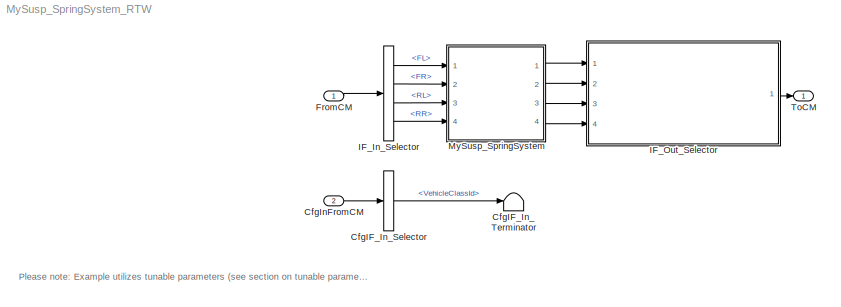
MODEL MySusp_SpringSystem_RTW
KIND model
CONFIG InitFcn = vehicle = 'Car'; if ~length(which('cmself')), cmenv; end\nMySusp_SpringSystem_RTW_bus
CONFIG PreLoadFcn = vehicle = 'Car'; if ~length(which('cmself')), cmenv; end\nMySusp_SpringSystem_RTW_bus\nMySusp_SpringSystem_RTW_params
BLOCK [BusSelector] CfgIF_In_Selector
  OutputSignals = VehicleClassId
  Ports = [1, 1]
  SID = 9
BLOCK [Terminator] CfgIF_In_Terminator
  SID = 10
BLOCK [Inport] CfgInFromCM
  OutDataTypeStr = Bus: cmSusp_SpringSystemCfgIn
  Port = 2
  SID = 8
BLOCK [Inport] FromCM
  OutDataTypeStr = Bus: cmSusp_SpringSystemIn
  SID = 1
BLOCK [BusSelector] IF_In_Selector
  OutputSignals = length.FL,length.FR,length.RL,length.RR
  Ports = [1, 4]
  SID = 2
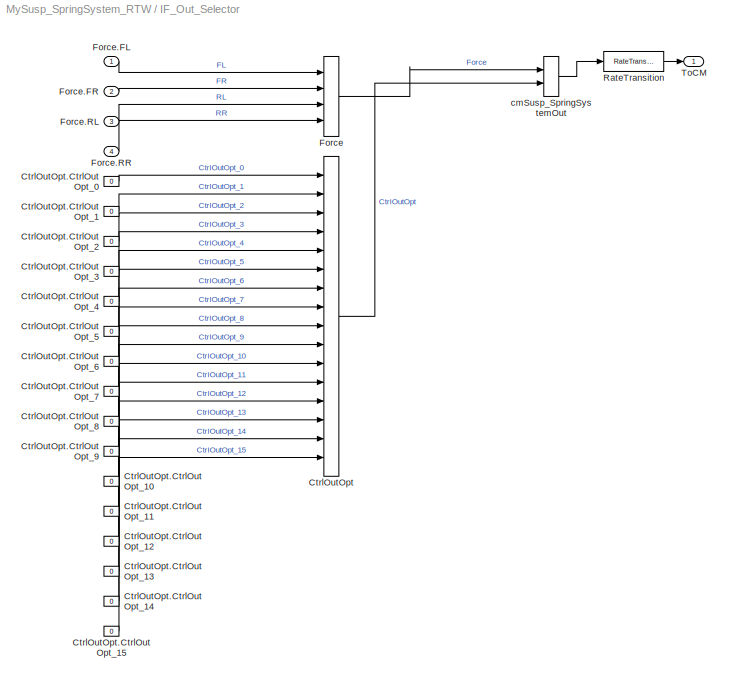
BLOCK [SubSystem] IF_Out_Selector
  OpenFcn = cmSignalSelect('SignalSelection_CB',gcb)
  Ports = [4, 1]
  RequestExecContextInheritance = off
  SID = 5
  UserData = DataTag0
  UserDataPersistent = on
BLOCK [BusCreator] IF_Out_Selector/CtrlOutOpt
  InheritFromInputs = on
  Inputs = 16
  Ports = [16, 1]
  SID = 17
BLOCK [Constant] IF_Out_Selector/CtrlOutOpt.CtrlOutOpt_0
  SID = 18
  Value = 0
BLOCK [Constant] IF_Out_Selector/CtrlOutOpt.CtrlOutOpt_1
  SID = 19
  Value = 0
BLOCK [Constant] IF_Out_Selector/CtrlOutOpt.CtrlOutOpt_10
  SID = 28
  Value = 0
BLOCK [Constant] IF_Out_Selector/CtrlOutOpt.CtrlOutOpt_11
  SID = 29
  Value = 0
BLOCK [Constant] IF_Out_Selector/CtrlOutOpt.CtrlOutOpt_12
  SID = 30
  Value = 0
BLOCK [Constant] IF_Out_Selector/CtrlOutOpt.CtrlOutOpt_13
  SID = 31
  Value = 0
BLOCK [Constant] IF_Out_Selector/CtrlOutOpt.CtrlOutOpt_14
  SID = 32
  Value = 0
BLOCK [Constant] IF_Out_Selector/CtrlOutOpt.CtrlOutOpt_15
  SID = 33
  Value = 0
BLOCK [Constant] IF_Out_Selector/CtrlOutOpt.CtrlOutOpt_2
  SID = 20
  Value = 0
BLOCK [Constant] IF_Out_Selector/CtrlOutOpt.CtrlOutOpt_3
  SID = 21
  Value = 0
BLOCK [Constant] IF_Out_Selector/CtrlOutOpt.CtrlOutOpt_4
  SID = 22
  Value = 0
BLOCK [Constant] IF_Out_Selector/CtrlOutOpt.CtrlOutOpt_5
  SID = 23
  Value = 0
BLOCK [Constant] IF_Out_Selector/CtrlOutOpt.CtrlOutOpt_6
  SID = 24
  Value = 0
BLOCK [Constant] IF_Out_Selector/CtrlOutOpt.CtrlOutOpt_7
  SID = 25
  Value = 0
BLOCK [Constant] IF_Out_Selector/CtrlOutOpt.CtrlOutOpt_8
  SID = 26
  Value = 0
BLOCK [Constant] IF_Out_Selector/CtrlOutOpt.CtrlOutOpt_9
  SID = 27
  Value = 0
BLOCK [BusCreator] IF_Out_Selector/Force
  InheritFromInputs = on
  Inputs = 4
  Ports = [4, 1]
  SID = 12
BLOCK [Inport] IF_Out_Selector/Force.FL
  SID = 130
BLOCK [Inport] IF_Out_Selector/Force.FR
  Port = 2
  SID = 131
BLOCK [Inport] IF_Out_Selector/Force.RL
  Port = 3
  SID = 132
BLOCK [Inport] IF_Out_Selector/Force.RR
  Port = 4
  SID = 133
BLOCK [RateTransition] IF_Out_Selector/RateTransition
  OutPortSampleTime = str2num(get_param(bdroot,'FixedStep'))
  SID = 6
BLOCK [Outport] IF_Out_Selector/ToCM
  SID = 7
BLOCK [BusCreator] IF_Out_Selector/cmSusp_SpringSystemOut
  InheritFromInputs = on
  Inputs = 2
  Ports = [2, 1]
  SID = 11
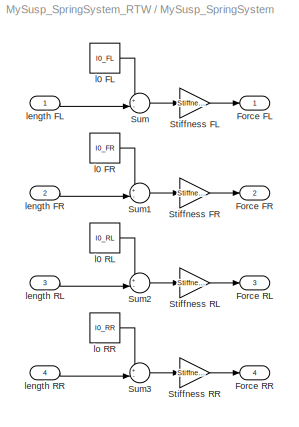
BLOCK [SubSystem] MySusp_SpringSystem
  Ports = [4, 4]
  RequestExecContextInheritance = off
  SID = 108
BLOCK [Outport] MySusp_SpringSystem/Force FL
  SID = 125
  VectorParamsAs1DForOutWhenUnconnected = off
BLOCK [Outport] MySusp_SpringSystem/Force FR
  Port = 2
  SID = 126
  VectorParamsAs1DForOutWhenUnconnected = off
BLOCK [Outport] MySusp_SpringSystem/Force RL
  Port = 3
  SID = 127
  VectorParamsAs1DForOutWhenUnconnected = off
BLOCK [Outport] MySusp_SpringSystem/Force RR
  Port = 4
  SID = 128
  VectorParamsAs1DForOutWhenUnconnected = off
BLOCK [Gain] MySusp_SpringSystem/Stiffness FL
  Gain = Stiffness_FL
  SID = 113
BLOCK [Gain] MySusp_SpringSystem/Stiffness FR
  Gain = Stiffness_FR
  SID = 114
BLOCK [Gain] MySusp_SpringSystem/Stiffness RL
  Gain = Stiffness_RL
  SID = 115
BLOCK [Gain] MySusp_SpringSystem/Stiffness RR
  Gain = Stiffness_RR
  SID = 116
BLOCK [Sum] MySusp_SpringSystem/Sum
  Inputs = +-|
  Ports = [2, 1]
  SID = 117
BLOCK [Sum] MySusp_SpringSystem/Sum1
  Inputs = +-|
  Ports = [2, 1]
  SID = 118
BLOCK [Sum] MySusp_SpringSystem/Sum2
  Inputs = +-|
  Ports = [2, 1]
  SID = 119
BLOCK [Sum] MySusp_SpringSystem/Sum3
  Inputs = +-|
  Ports = [2, 1]
  SID = 120
BLOCK [Constant] MySusp_SpringSystem/l0 FL
  SID = 121
  Value = l0_FL
BLOCK [Constant] MySusp_SpringSystem/l0 FR
  SID = 122
  Value = l0_FR
BLOCK [Constant] MySusp_SpringSystem/l0 RL
  SID = 123
  Value = l0_RL
BLOCK [Inport] MySusp_SpringSystem/length FL
  SID = 109
BLOCK [Inport] MySusp_SpringSystem/length FR
  Port = 2
  SID = 110
BLOCK [Inport] MySusp_SpringSystem/length RL
  Port = 3
  SID = 111
BLOCK [Inport] MySusp_SpringSystem/length RR
  Port = 4
  SID = 112
BLOCK [Constant] MySusp_SpringSystem/lo RR
  SID = 124
  Value = l0_RR
BLOCK [Outport] ToCM
  OutDataTypeStr = Bus: cmSusp_SpringSystemOut
  SID = 4
ANNOTATION (root): \n \n Please note: Example utilizes tunable parameters (see section on tunable parameters in the Programmers Guide). \n \n For user models of the class Susp_SpringSystem at least one modelclass-specific parameter (*.TimeInvariant) needs to be specified in the "Modelclass-specific Parameters" dialog of the CarMaker GUI.
LINE CfgIF_In_Selector:1 -> CfgIF_In_Terminator:1
LINE CfgInFromCM:1 -> CfgIF_In_Selector:1
LINE FromCM:1 -> IF_In_Selector:1
LINE IF_In_Selector:1 -> MySusp_SpringSystem:1
LINE IF_In_Selector:2 -> MySusp_SpringSystem:2
LINE IF_In_Selector:3 -> MySusp_SpringSystem:3
LINE IF_In_Selector:4 -> MySusp_SpringSystem:4
LINE IF_Out_Selector/CtrlOutOpt.CtrlOutOpt_0:1 -> IF_Out_Selector/CtrlOutOpt:1
LINE IF_Out_Selector/CtrlOutOpt.CtrlOutOpt_10:1 -> IF_Out_Selector/CtrlOutOpt:11
LINE IF_Out_Selector/CtrlOutOpt.CtrlOutOpt_11:1 -> IF_Out_Selector/CtrlOutOpt:12
LINE IF_Out_Selector/CtrlOutOpt.CtrlOutOpt_12:1 -> IF_Out_Selector/CtrlOutOpt:13
LINE IF_Out_Selector/CtrlOutOpt.CtrlOutOpt_13:1 -> IF_Out_Selector/CtrlOutOpt:14
LINE IF_Out_Selector/CtrlOutOpt.CtrlOutOpt_14:1 -> IF_Out_Selector/CtrlOutOpt:15
LINE IF_Out_Selector/CtrlOutOpt.CtrlOutOpt_15:1 -> IF_Out_Selector/CtrlOutOpt:16
LINE IF_Out_Selector/CtrlOutOpt.CtrlOutOpt_1:1 -> IF_Out_Selector/CtrlOutOpt:2
LINE IF_Out_Selector/CtrlOutOpt.CtrlOutOpt_2:1 -> IF_Out_Selector/CtrlOutOpt:3
LINE IF_Out_Selector/CtrlOutOpt.CtrlOutOpt_3:1 -> IF_Out_Selector/CtrlOutOpt:4
LINE IF_Out_Selector/CtrlOutOpt.CtrlOutOpt_4:1 -> IF_Out_Selector/CtrlOutOpt:5
LINE IF_Out_Selector/CtrlOutOpt.CtrlOutOpt_5:1 -> IF_Out_Selector/CtrlOutOpt:6
LINE IF_Out_Selector/CtrlOutOpt.CtrlOutOpt_6:1 -> IF_Out_Selector/CtrlOutOpt:7
LINE IF_Out_Selector/CtrlOutOpt.CtrlOutOpt_7:1 -> IF_Out_Selector/CtrlOutOpt:8
LINE IF_Out_Selector/CtrlOutOpt.CtrlOutOpt_8:1 -> IF_Out_Selector/CtrlOutOpt:9
LINE IF_Out_Selector/CtrlOutOpt.CtrlOutOpt_9:1 -> IF_Out_Selector/CtrlOutOpt:10
LINE IF_Out_Selector/CtrlOutOpt:1 -> IF_Out_Selector/cmSusp_SpringSystemOut:2
LINE IF_Out_Selector/Force.FL:1 -> IF_Out_Selector/Force:1
LINE IF_Out_Selector/Force.FR:1 -> IF_Out_Selector/Force:2
LINE IF_Out_Selector/Force.RL:1 -> IF_Out_Selector/Force:3
LINE IF_Out_Selector/Force.RR:1 -> IF_Out_Selector/Force:4
LINE IF_Out_Selector/Force:1 -> IF_Out_Selector/cmSusp_SpringSystemOut:1
LINE IF_Out_Selector/RateTransition:1 -> IF_Out_Selector/ToCM:1
LINE IF_Out_Selector/cmSusp_SpringSystemOut:1 -> IF_Out_Selector/RateTransition:1
LINE IF_Out_Selector:1 -> ToCM:1
LINE MySusp_SpringSystem/Stiffness FL:1 -> MySusp_SpringSystem/Force FL:1
LINE MySusp_SpringSystem/Stiffness FR:1 -> MySusp_SpringSystem/Force FR:1
LINE MySusp_SpringSystem/Stiffness RL:1 -> MySusp_SpringSystem/Force RL:1
LINE MySusp_SpringSystem/Stiffness RR:1 -> MySusp_SpringSystem/Force RR:1
LINE MySusp_SpringSystem/Sum1:1 -> MySusp_SpringSystem/Stiffness FR:1
LINE MySusp_SpringSystem/Sum2:1 -> MySusp_SpringSystem/Stiffness RL:1
LINE MySusp_SpringSystem/Sum3:1 -> MySusp_SpringSystem/Stiffness RR:1
LINE MySusp_SpringSystem/Sum:1 -> MySusp_SpringSystem/Stiffness FL:1
LINE MySusp_SpringSystem/l0 FL:1 -> MySusp_SpringSystem/Sum:1
LINE MySusp_SpringSystem/l0 FR:1 -> MySusp_SpringSystem/Sum1:1
LINE MySusp_SpringSystem/l0 RL:1 -> MySusp_SpringSystem/Sum2:1
LINE MySusp_SpringSystem/length FL:1 -> MySusp_SpringSystem/Sum:2
LINE MySusp_SpringSystem/length FR:1 -> MySusp_SpringSystem/Sum1:2
LINE MySusp_SpringSystem/length RL:1 -> MySusp_SpringSystem/Sum2:2
LINE MySusp_SpringSystem/length RR:1 -> MySusp_SpringSystem/Sum3:2
LINE MySusp_SpringSystem/lo RR:1 -> MySusp_SpringSystem/Sum3:1
LINE MySusp_SpringSystem:1 -> IF_Out_Selector:1
LINE MySusp_SpringSystem:2 -> IF_Out_Selector:2
LINE MySusp_SpringSystem:3 -> IF_Out_Selector:3
LINE MySusp_SpringSystem:4 -> IF_Out_Selector:4
